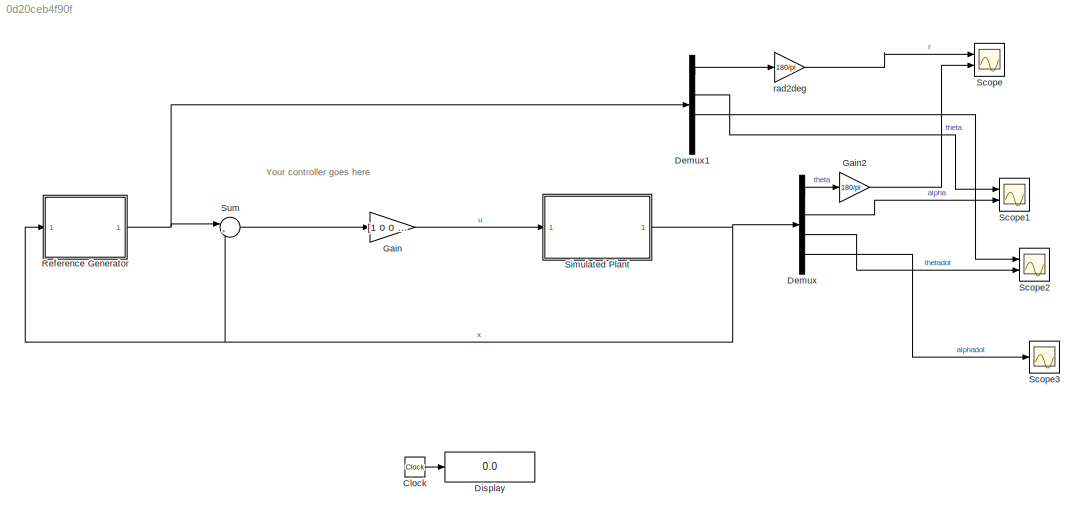
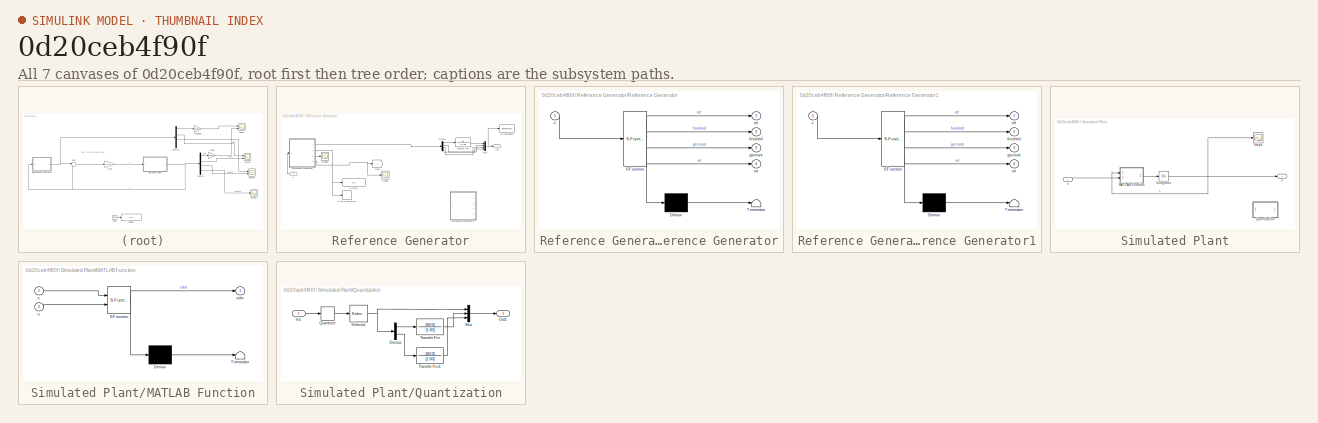
[diagram: thumbnail index - all 7 canvases of the model, root first then tree order]
MODEL slx_0d20ceb4f90f
KIND model
CONFIG AbsTol = auto
CONFIG EnableMultiTasking = on
CONFIG FixedStep = 0.002
CONFIG InitFcn = %% Motor\n% Resistance\nRm = 8.4;\n% Current-torque (N-m/A)\nkt = 0.042;\n% Back-emf constant (V-s/rad)\nkm = 0.042;\n%\n%% Rotary Arm\n% Mass (kg)\nMr = 0.095;\n% Total length (m)\nLr = 0.085;\n% Moment of inertia about pivot (kg-m^2)\nJr = Mr*Lr^2/12;\n% Equivalent Viscous Damping Coefficient (N-m-s/rad)\nDr = 0.0015;\n% Dr = 0.001;\n%\n%% Pendulum Link\n% Mass (kg)\nMp = 0.024;\n% Total length (m)\nLp = 0.129;\n% Mome...<+2072ch>
CONFIG MaxStep = auto
CONFIG MinStep = auto
CONFIG RelTol = 1e-3
CONFIG SampleTimeConstraint = Unconstrained
CONFIG SolverName = ode4
CONFIG StartTime = 0.0
CONFIG StopTime = 50
BLOCK [Clock] Clock
BLOCK [Demux] Demux
  Ports = [1, 4]
BLOCK [Demux] Demux1
  Ports = [1, 4]
BLOCK [Display] Display
  Decimation = 1
  Ports = [1]
BLOCK [Gain] Gain
  Gain = [1 0 0 0]
  Multiplication = Matrix(K*u)
BLOCK [Gain] Gain2
  Gain = 180/pi
BLOCK [SubSystem] Reference Generator
  Ports = [1, 1]
  RequestExecContextInheritance = off
BLOCK [Demux] Reference Generator/Demux
  Ports = [1, 4]
BLOCK [Display] Reference Generator/Display
  Decimation = 1
  Ports = [1]
BLOCK [Goto] Reference Generator/Goto
  TagVisibility = global
BLOCK [Mux] Reference Generator/Mux
  DisplayOption = bar
  Ports = [4, 1]
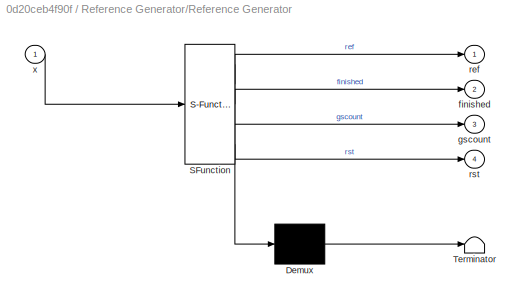
BLOCK [SubSystem] Reference Generator/Reference Generator
  ErrorFcn = Stateflow.Translate.translate
  PermitHierarchicalResolution = ExplicitOnly
  Ports = [1, 4]
  RequestExecContextInheritance = off
  SFBlockType = MATLAB Function
  SystemSampleTime = 0.002
  TreatAsAtomicUnit = on
BLOCK [Demux] Reference Generator/Reference Generator/ Demux 
  Outputs = 1
  Ports = [1, 1]
BLOCK [S-Function] Reference Generator/Reference Generator/ SFunction 
  EnableBusSupport = on
  FunctionName = sf_sfun
  PortCounts = [1 5]
  Ports = [1, 5]
  SFcnIsStateOwnerBlock = off
  SFunctionDeploymentMode = off
  Tag = Stateflow S-Function 2
BLOCK [Terminator] Reference Generator/Reference Generator/ Terminator 
BLOCK [Outport] Reference Generator/Reference Generator/finished
  Port = 2
BLOCK [Outport] Reference Generator/Reference Generator/gscount
  Port = 3
BLOCK [Outport] Reference Generator/Reference Generator/ref
BLOCK [Outport] Reference Generator/Reference Generator/rst
  Port = 4
BLOCK [Inport] Reference Generator/Reference Generator/x
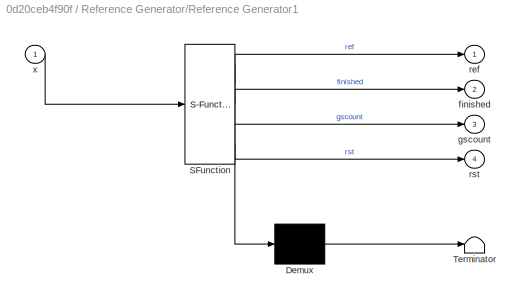
BLOCK [SubSystem] Reference Generator/Reference Generator1
  Commented = on
  ErrorFcn = Stateflow.Translate.translate
  PermitHierarchicalResolution = ExplicitOnly
  Ports = [1, 4]
  RequestExecContextInheritance = off
  SFBlockType = MATLAB Function
  SystemSampleTime = 0.002
  TreatAsAtomicUnit = on
BLOCK [Demux] Reference Generator/Reference Generator1/ Demux 
  Outputs = 1
  Ports = [1, 1]
BLOCK [S-Function] Reference Generator/Reference Generator1/ SFunction 
  EnableBusSupport = on
  FunctionName = sf_sfun
  PortCounts = [1 5]
  Ports = [1, 5]
  SFcnIsStateOwnerBlock = off
  SFunctionDeploymentMode = off
  Tag = Stateflow S-Function 3
BLOCK [Terminator] Reference Generator/Reference Generator1/ Terminator 
BLOCK [Outport] Reference Generator/Reference Generator1/finished
  Port = 2
BLOCK [Outport] Reference Generator/Reference Generator1/gscount
  Port = 3
BLOCK [Outport] Reference Generator/Reference Generator1/ref
BLOCK [Outport] Reference Generator/Reference Generator1/rst
  Port = 4
BLOCK [Inport] Reference Generator/Reference Generator1/x
BLOCK [Scope] Reference Generator/Scope
  Floating = off
  NumInputPorts = 1
  Ports = [1]
  ScopeSpecificationString = Simulink.scopes.TimeScopeBlockCfg('CurrentConfiguration', extmgr.ConfigurationSet(extmgr.Configuration('Core','General UI',true),extmgr.Configuration('Core','Source UI',true),extmgr.Configuration('Sources','WiredSimulink',true,'DataLoggingVariableName','ScopeData3'),extmgr.Configuration('Visuals','Time Domain',true,'SerializedDisplays',{struct('MinYLimReal','-1.00000','MaxYLimReal','1.00000','YLab...<+1410ch>
BLOCK [Scope] Reference Generator/Scope2
  Floating = off
  NumInputPorts = 1
  Ports = [1]
  ScopeSpecificationString = Simulink.scopes.TimeScopeBlockCfg('CurrentConfiguration', extmgr.ConfigurationSet(extmgr.Configuration('Core','General UI',true,'FigureColor',[0.156862745098039 0.156862745098039 0.156862745098039]),extmgr.Configuration('Core','Source UI',true),extmgr.Configuration('Sources','WiredSimulink',true,'DataLoggingVariableName','ScopeData3','DataLoggingSaveFormat','Array','DataLoggingDecimation','1','Dat...<+2818ch>
BLOCK [Stop] Reference Generator/Stop Simulation
BLOCK [ToWorkspace] Reference Generator/To Workspace
  FixptAsFi = on
  MaxDataPoints = inf
  Ports = [1]
  SampleTime = 0.002
  SaveFormat = Structure With Time
  VariableName = r
BLOCK [TransferFcn] Reference Generator/Transfer Fcn
  Denominator = [1 20]
  Numerator = 20
BLOCK [Outport] Reference Generator/ref
BLOCK [Inport] Reference Generator/x
BLOCK [Scope] Scope
  Floating = off
  NumInputPorts = 2
  Ports = [2]
  ScopeSpecificationString = Simulink.scopes.TimeScopeBlockCfg('CurrentConfiguration', extmgr.ConfigurationSet(extmgr.Configuration('Core','General UI',true),extmgr.Configuration('Core','Source UI',true),extmgr.Configuration('Sources','WiredSimulink',true,'DataLoggingVariableName','ScopeData2'),extmgr.Configuration('Visuals','Time Domain',true,'SerializedDisplays',{struct('MinYLimReal','-73.125','MaxYLimReal','58.125','YLabel...<+1433ch>
BLOCK [Scope] Scope1
  Floating = off
  NumInputPorts = 2
  Ports = [2]
  ScopeSpecificationString = Simulink.scopes.TimeScopeBlockCfg('CurrentConfiguration', extmgr.ConfigurationSet(extmgr.Configuration('Core','General UI',true),extmgr.Configuration('Core','Source UI',true),extmgr.Configuration('Sources','WiredSimulink',true,'DataLoggingVariableName','ScopeData1'),extmgr.Configuration('Visuals','Time Domain',true),extmgr.Configuration('Tools','Plot Navigation',true),extmgr.Configuration('Tools',...<+40ch>
BLOCK [Scope] Scope2
  Floating = off
  NumInputPorts = 2
  Ports = [2]
  ScopeSpecificationString = Simulink.scopes.TimeScopeBlockCfg('CurrentConfiguration', extmgr.ConfigurationSet(extmgr.Configuration('Core','General UI',true),extmgr.Configuration('Core','Source UI',true),extmgr.Configuration('Sources','WiredSimulink',true,'DataLoggingVariableName','ScopeData2'),extmgr.Configuration('Visuals','Time Domain',true),extmgr.Configuration('Tools','Plot Navigation',true),extmgr.Configuration('Tools',...<+40ch>
BLOCK [Scope] Scope3
  Floating = off
  NumInputPorts = 1
  Ports = [1]
  ScopeSpecificationString = Simulink.scopes.TimeScopeBlockCfg('CurrentConfiguration', extmgr.ConfigurationSet(extmgr.Configuration('Core','General UI',true),extmgr.Configuration('Core','Source UI',true),extmgr.Configuration('Sources','WiredSimulink',true,'DataLoggingVariableName','ScopeData3'),extmgr.Configuration('Visuals','Time Domain',true),extmgr.Configuration('Tools','Plot Navigation',true),extmgr.Configuration('Tools',...<+40ch>
BLOCK [SubSystem] Simulated Plant
  Ports = [1, 1]
  RequestExecContextInheritance = off
BLOCK [Integrator] Simulated Plant/Integrator
  InitialCondition = [0;0;0;0]
  Ports = [1, 1]
BLOCK [SubSystem] Simulated Plant/MATLAB Function
  ErrorFcn = Stateflow.Translate.translate
  PermitHierarchicalResolution = ExplicitOnly
  Ports = [2, 1]
  RequestExecContextInheritance = off
  SFBlockType = MATLAB Function
  TreatAsAtomicUnit = on
BLOCK [Demux] Simulated Plant/MATLAB Function/ Demux 
  Outputs = 1
  Ports = [1, 1]
BLOCK [S-Function] Simulated Plant/MATLAB Function/ SFunction 
  EnableBusSupport = on
  FunctionName = sf_sfun
  PortCounts = [2 2]
  Ports = [2, 2]
  SFcnIsStateOwnerBlock = off
  SFunctionDeploymentMode = off
  Tag = Stateflow S-Function 4
BLOCK [Terminator] Simulated Plant/MATLAB Function/ Terminator 
BLOCK [Inport] Simulated Plant/MATLAB Function/u
  Port = 2
BLOCK [Inport] Simulated Plant/MATLAB Function/x
BLOCK [Outport] Simulated Plant/MATLAB Function/xdot
BLOCK [SubSystem] Simulated Plant/Quantization
  Commented = on
  Ports = [1, 1]
  RequestExecContextInheritance = off
BLOCK [Demux] Simulated Plant/Quantization/Demux
  Outputs = 2
  Ports = [1, 2]
BLOCK [Inport] Simulated Plant/Quantization/In1
BLOCK [Mux] Simulated Plant/Quantization/Mux
  DisplayOption = bar
  Inputs = 3
  Ports = [3, 1]
BLOCK [Outport] Simulated Plant/Quantization/Out1
BLOCK [Quantizer] Simulated Plant/Quantization/Quantizer
  QuantizationInterval = 2*pi/2048
BLOCK [Selector] Simulated Plant/Quantization/Selector
  IndexOptions = Index vector (dialog)
  Indices = [1 2]
  InputPortWidth = 4
  OutputSizes = 1
  Ports = [1, 1]
BLOCK [TransferFcn] Simulated Plant/Quantization/Transfer Fcn
  Denominator = [1 60]
  Numerator = [60 0]
BLOCK [TransferFcn] Simulated Plant/Quantization/Transfer Fcn1
  Denominator = [1 60]
  Numerator = [60 0]
BLOCK [Scope] Simulated Plant/Scope
  Floating = off
  NumInputPorts = 1
  Ports = [1]
  ScopeSpecificationString = Simulink.scopes.TimeScopeBlockCfg('CurrentConfiguration', extmgr.ConfigurationSet(extmgr.Configuration('Core','General UI',true),extmgr.Configuration('Core','Source UI',true),extmgr.Configuration('Sources','WiredSimulink',true,'DataLoggingVariableName','ScopeData1'),extmgr.Configuration('Visuals','Time Domain',true,'SerializedDisplays',{struct('MinYLimReal','-3.25003','MaxYLimReal','3.67564','YLab...<+1434ch>
BLOCK [Inport] Simulated Plant/u
BLOCK [Outport] Simulated Plant/x
BLOCK [Sum] Sum
  Inputs = |+-
  Ports = [2, 1]
BLOCK [Gain] rad2deg
  Gain = 180/pi
ANNOTATION (root): Your controller goes here
LINE Clock:1 -> Display:1
LINE Demux1:1 -> rad2deg:1
LINE Demux1:2 -> Scope1:1
LINE Demux1:3 -> Scope2:1
LINE Demux:1 -> Gain2:1
LINE Demux:2 -> Scope1:2
LINE Demux:3 -> Scope2:2
LINE Demux:4 -> Scope3:1
LINE Gain2:1 -> Scope:2
LINE Gain:1 -> Simulated Plant:1
LINE Reference Generator/Demux:1 -> Reference Generator/Transfer Fcn:1
LINE Reference Generator/Demux:2 -> Reference Generator/Mux:2
LINE Reference Generator/Demux:3 -> Reference Generator/Mux:3
LINE Reference Generator/Demux:4 -> Reference Generator/Mux:4
NET Reference Generator/Mux:1 -> Reference Generator/To Workspace:1, Reference Generator/ref:1
LINE Reference Generator/Reference Generator:1 -> Reference Generator/Demux:1
NET Reference Generator/Reference Generator:2 -> Reference Generator/Display:1, Reference Generator/Stop Simulation:1
LINE Reference Generator/Reference Generator:3 -> Reference Generator/Scope2:1
NET Reference Generator/Reference Generator:4 -> Reference Generator/Goto:1, Reference Generator/Scope:1
LINE Reference Generator/Transfer Fcn:1 -> Reference Generator/Mux:1
LINE Reference Generator/x:1 -> Reference Generator/Reference Generator:1
NET Reference Generator:1 -> Demux1:1, Sum:1
NET Simulated Plant/Integrator:1 -> Simulated Plant/MATLAB Function:1, Simulated Plant/Scope:1, Simulated Plant/x:1
LINE Simulated Plant/MATLAB Function:1 -> Simulated Plant/Integrator:1
LINE Simulated Plant/Quantization/Demux:1 -> Simulated Plant/Quantization/Transfer Fcn:1
LINE Simulated Plant/Quantization/Demux:2 -> Simulated Plant/Quantization/Transfer Fcn1:1
LINE Simulated Plant/Quantization/In1:1 -> Simulated Plant/Quantization/Quantizer:1
LINE Simulated Plant/Quantization/Mux:1 -> Simulated Plant/Quantization/Out1:1
LINE Simulated Plant/Quantization/Quantizer:1 -> Simulated Plant/Quantization/Selector:1
NET Simulated Plant/Quantization/Selector:1 -> Simulated Plant/Quantization/Demux:1, Simulated Plant/Quantization/Mux:1
LINE Simulated Plant/Quantization/Transfer Fcn1:1 -> Simulated Plant/Quantization/Mux:3
LINE Simulated Plant/Quantization/Transfer Fcn:1 -> Simulated Plant/Quantization/Mux:2
LINE Simulated Plant/u:1 -> Simulated Plant/MATLAB Function:2
NET Simulated Plant:1 -> Demux:1, Reference Generator:1, Sum:2
LINE Sum:1 -> Gain:1
LINE rad2deg:1 -> Scope:1
note: NET lines group one-source signal fan-out (src -> all destinations, sorted); 1:1 wires keep LINE
CHART Reference Generator/Reference Generator states=1 transitions=1
  STATE_LABEL 'eML_blk_kernel()'
  STATE_LABEL "SCRIPT:\nfunction [ref, finished, gscount,rst] = referenceGenerator(x)\n%#codegen\n%     coder.allowpcode('REFGEN');\n    [ref, finished, gscount, rst] = REFGEN(x);\nend"
CHART Reference Generator/Reference Generator1 states=1 transitions=1
  STATE_LABEL 'eML_blk_kernel()'
  STATE_LABEL "SCRIPT:\nfunction [ref, finished, gscount,rst] = REFGEN(x)\n%#codegen\n%% Crane Reference Generator: For AMME3500 Lab 3 (2016)\n% \n% Generates three `waypoints' for the crane's horizontal linkage. When the\n% state is settled close to the reference at close to zero velocity, the\n% next waypoint is given (the change is a step change). When all the waypoints \n% have been reached, then the task is finishe...<+2318ch>"
CHART Simulated Plant/MATLAB Function states=1 transitions=1
  STATE_LABEL 'eML_blk_kernel()'
  STATE_LABEL 'SCRIPT:\nfunction xdot = fcn(x,u)\n\n    xdot = dyn(x,u);\n\n\nend'
CHART  states=0 transitions=0
CHART  states=0 transitions=0
CHART  states=0 transitions=0
